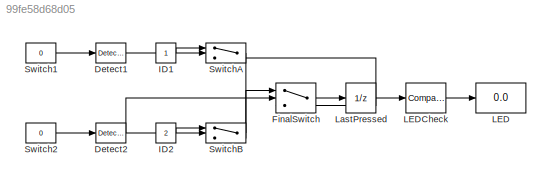
MODEL slx_99fe58d68d05
KIND model
CONFIG AbsTol = auto
CONFIG EnableMultiTasking = off
CONFIG FixedStep = 1
CONFIG MaxStep = auto
CONFIG MinStep = auto
CONFIG RelTol = 1e-3
CONFIG SampleTimeConstraint = Unconstrained
CONFIG SolverName = FixedStepDiscrete
CONFIG StartTime = 0.0
CONFIG StopTime = 20
BLOCK [Reference] Detect1  REF=simulink/Logic and Bit
Operations/Detect
Change
  SourceBlock = simulink/Logic and Bit\nOperations/Detect\nChange
  SourceType = Detect Change
BLOCK [Reference] Detect2  REF=simulink/Logic and Bit
Operations/Detect
Change
  SourceBlock = simulink/Logic and Bit\nOperations/Detect\nChange
  SourceType = Detect Change
BLOCK [Switch] FinalSwitch
  Criteria = u2 ~= 0
  InputSameDT = off
  SaturateOnIntegerOverflow = off
  Threshold = 0.5
BLOCK [Constant] ID1
BLOCK [Constant] ID2
  Value = 2
BLOCK [Display] LED
  Decimation = 1
BLOCK [Reference] LEDCheck  REF=simulink/Logic and Bit
Operations/Compare
To Constant
  SourceBlock = simulink/Logic and Bit\nOperations/Compare\nTo Constant
  SourceType = Compare To Constant
BLOCK [UnitDelay] LastPressed
  HasFrameUpgradeWarning = on
BLOCK [Constant] Switch1
  Value = 0
BLOCK [Constant] Switch2
  Value = 0
BLOCK [Switch] SwitchA
  Criteria = u2 ~= 0
  InputSameDT = off
  SaturateOnIntegerOverflow = off
  Threshold = 0.5
BLOCK [Switch] SwitchB
  Criteria = u2 ~= 0
  InputSameDT = off
  SaturateOnIntegerOverflow = off
  Threshold = 0.5
LINE Detect1:1 -> SwitchA:2
NET Detect2:1 -> FinalSwitch:2, SwitchB:2
LINE FinalSwitch:1 -> LastPressed:1
LINE ID1:1 -> SwitchA:1
LINE ID2:1 -> SwitchB:1
LINE LEDCheck:1 -> LED:1
NET LastPressed:1 -> FinalSwitch:3, LEDCheck:1, SwitchA:3
LINE Switch1:1 -> Detect1:1
LINE Switch2:1 -> Detect2:1
LINE SwitchA:1 -> SwitchB:3
LINE SwitchB:1 -> FinalSwitch:1
note: NET lines group one-source signal fan-out (src -> all destinations, sorted); 1:1 wires keep LINE
